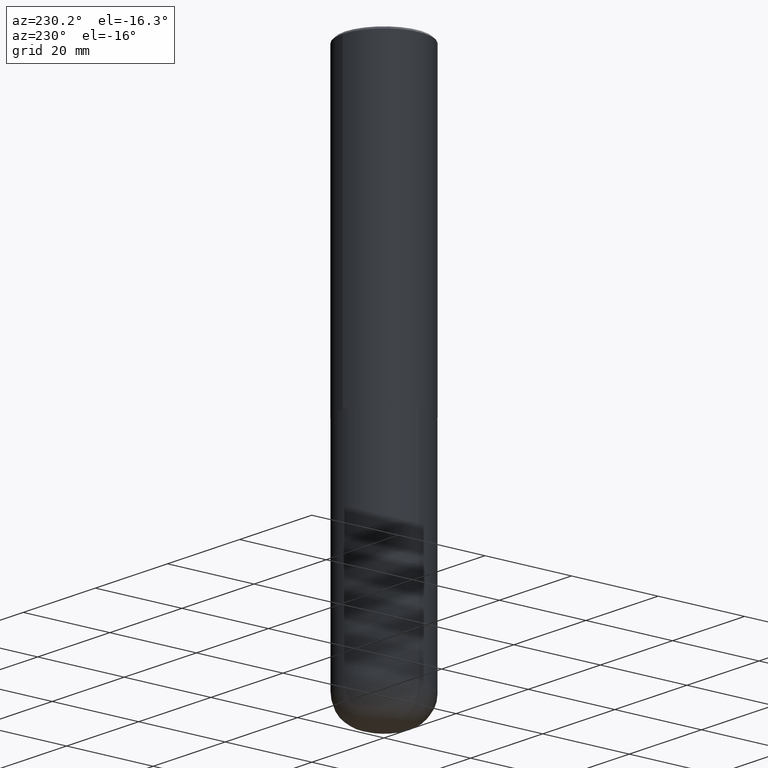
[diagram: clean part render]
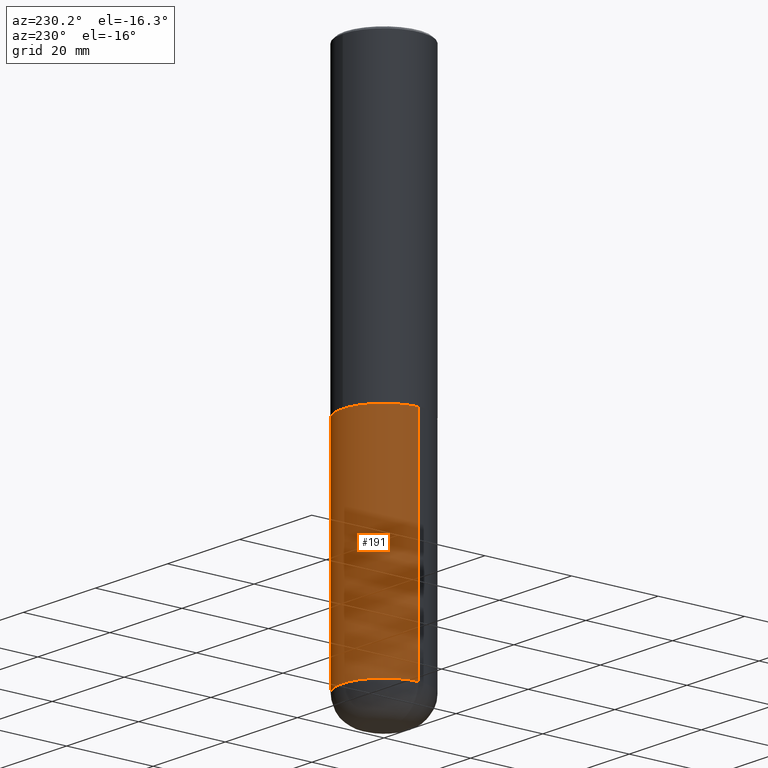
[diagram: same view with one face highlighted and labeled with its STEP entity id]
A machine part, auxiliary view. The second image highlights one B-rep face of the part: STEP entity #191.
In plain terms, the highlighted cylindrical surface (partial cylindrical patch) has radius 9.525 mm, axis along (-0, 0, 1).
Its self-contained STEP definition (entity closure, byte-faithful):
#27 = VERTEX_POINT ( 'NONE', #135 ) ;
#37 = CARTESIAN_POINT ( 'NONE',  ( -0.3750000000000000555, -1.042851976156142014E-14, -2.750000000000000000 ) ) ;
#44 = FACE_OUTER_BOUND ( 'NONE', #354, .T. ) ;
#58 = CIRCLE ( 'NONE', #361, 0.3750000000000000555 ) ;
#59 = CARTESIAN_POINT ( 'NONE',  ( 0.3749999999999999445, -2.618611004132349622E-15, 1.828566290923475642E-29 ) ) ;
#65 = CARTESIAN_POINT ( 'NONE',  ( 0.3750000000000000555, -1.222018468595100145E-14, -2.750000000000000000 ) ) ;
#72 = DIRECTION ( 'NONE',  ( -2.445468806185136597E-29, 3.491481338843145583E-15, 1.000000000000000000 ) ) ;
#76 = AXIS2_PLACEMENT_3D ( 'NONE', #172, #72, #309 ) ;
#78 = DIRECTION ( 'NONE',  ( -2.445468806185136877E-29, 3.491481338843145188E-15, 1.000000000000000000 ) ) ;
#84 = VECTOR ( 'NONE', #78, 39.37007874015748143 ) ;
#133 = ORIENTED_EDGE ( 'NONE', *, *, #147, .F. ) ;
#135 = CARTESIAN_POINT ( 'NONE',  ( 0.3750000000000002220, -1.920314736363729341E-14, -4.750000000000000000 ) ) ;
#136 = EDGE_CURVE ( 'NONE', #27, #170, #355, .T. ) ;
#141 = CARTESIAN_POINT ( 'NONE',  ( -0.3749999999999999445, 2.664535259100375303E-15, -1.844600658845589318E-29 ) ) ;
#142 = ORIENTED_EDGE ( 'NONE', *, *, #234, .T. ) ;
#147 = EDGE_CURVE ( 'NONE', #170, #245, #58, .T. ) ;
#170 = VERTEX_POINT ( 'NONE', #65 ) ;
#172 = CARTESIAN_POINT ( 'NONE',  ( 1.161597682937940108E-28, -1.658453635950494339E-14, -4.750000000000000000 ) ) ;
#177 = LINE ( 'NONE', #141, #84 ) ;
#179 = VECTOR ( 'NONE', #190, 39.37007874015748143 ) ;
#187 = DIRECTION ( 'NONE',  ( 1.000000000000000000, -6.982962677686266711E-15, 0.000000000000000000 ) ) ;
#190 = DIRECTION ( 'NONE',  ( -2.445468806185136877E-29, 3.491481338843145188E-15, 1.000000000000000000 ) ) ;
#191 = ADVANCED_FACE ( 'NONE', ( #44 ), #203, .T. ) ;
#203 = CYLINDRICAL_SURFACE ( 'NONE', #338, 0.3749999999999999445 ) ;
#204 = ORIENTED_EDGE ( 'NONE', *, *, #219, .T. ) ;
#206 = DIRECTION ( 'NONE',  ( -2.445468806185136597E-29, 3.491481338843145583E-15, 1.000000000000000000 ) ) ;
#219 = EDGE_CURVE ( 'NONE', #418, #245, #177, .T. ) ;
#234 = EDGE_CURVE ( 'NONE', #27, #418, #327, .T. ) ;
#245 = VERTEX_POINT ( 'NONE', #37 ) ;
#247 = CARTESIAN_POINT ( 'NONE',  ( 0.000000000000000000, 0.000000000000000000, 0.000000000000000000 ) ) ;
#254 = CARTESIAN_POINT ( 'NONE',  ( -0.3750000000000002220, -1.392000110040456296E-14, -4.750000000000000000 ) ) ;
#269 = DIRECTION ( 'NONE',  ( -2.445468806185136597E-29, 3.491481338843145583E-15, 1.000000000000000000 ) ) ;
#309 = DIRECTION ( 'NONE',  ( 1.000000000000000000, -6.982962677686269077E-15, 0.000000000000000000 ) ) ;
#327 = CIRCLE ( 'NONE', #76, 0.3749999999999999445 ) ;
#335 = DIRECTION ( 'NONE',  ( 1.000000000000000000, -6.982962677686266711E-15, 4.876176775795935793E-29 ) ) ;
#338 = AXIS2_PLACEMENT_3D ( 'NONE', #247, #206, #335 ) ;
#354 = EDGE_LOOP ( 'NONE', ( #142, #204, #133, #398 ) ) ;
#355 = LINE ( 'NONE', #59, #179 ) ;
#359 = CARTESIAN_POINT ( 'NONE',  ( 6.725039217009124520E-29, -9.601573681818649859E-15, -2.750000000000000000 ) ) ;
#361 = AXIS2_PLACEMENT_3D ( 'NONE', #359, #269, #187 ) ;
#398 = ORIENTED_EDGE ( 'NONE', *, *, #136, .F. ) ;
#418 = VERTEX_POINT ( 'NONE', #254 ) ;